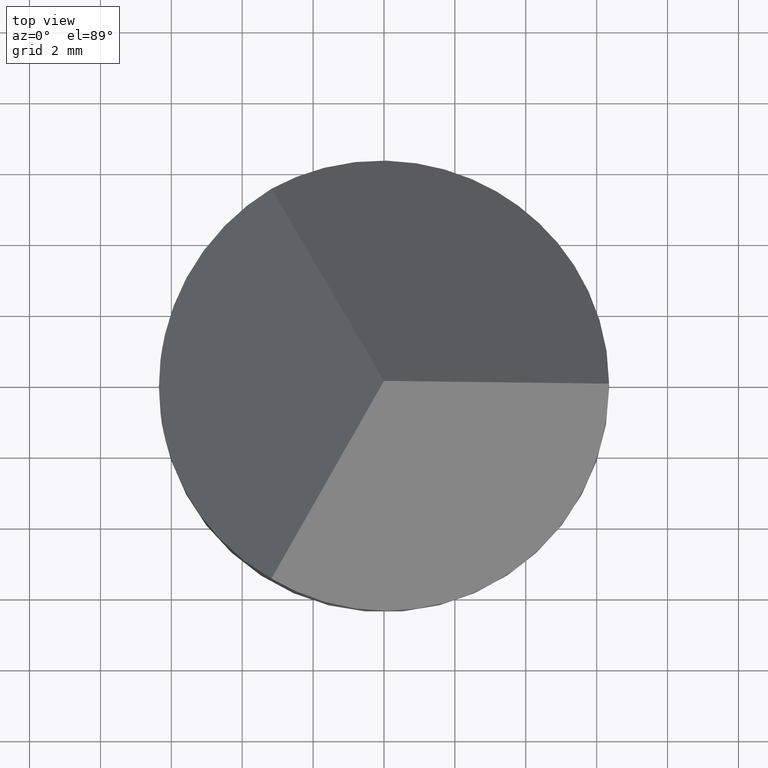
[diagram: clean part render]
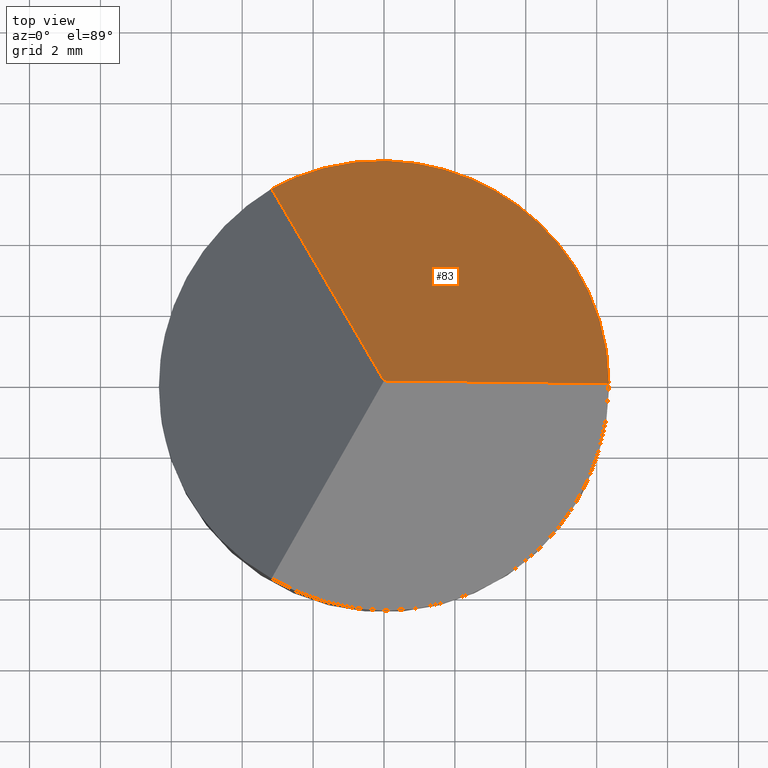
[diagram: same view with one face highlighted and labeled with its STEP entity id]
A machine part, top view. The second image highlights one B-rep face of the part: STEP entity #83.
In plain terms, the highlighted planar face has unit normal (0.4082, 0.7071, 0.5774).
Its self-contained STEP definition (entity closure, byte-faithful):
#6 = CARTESIAN_POINT ( 'NONE',  ( 7.073520084914156000, -12.25169617543019700, 20.16139043989909000 ) ) ;
#8 = ORIENTED_EDGE ( 'NONE', *, *, #205, .T. ) ;
#14 = CARTESIAN_POINT ( 'NONE',  ( 6.350000000000000500, 5.499261314031192800, -1.062988789698542600 ) ) ;
#23 = VERTEX_POINT ( 'NONE', #175 ) ;
#30 = CARTESIAN_POINT ( 'NONE',  ( 14.72243186433548900, -8.499999999999966200, 10.16000000000000000 ) ) ;
#31 = CARTESIAN_POINT ( 'NONE',  ( -8.673617379884035500E-016, -4.004885026051589500E-016, 10.16000000000000200 ) ) ;
#43 = ORIENTED_EDGE ( 'NONE', *, *, #126, .F. ) ;
#45 = VECTOR ( 'NONE', #75, 1000.000000000000200 ) ;
#51 = DIRECTION ( 'NONE',  ( 0.4082765531884057800, -0.7071557336614134900, 0.5772703218305811300 ) ) ;
#52 = VERTEX_POINT ( 'NONE', #295 ) ;
#70 =( BOUNDED_CURVE ( )  B_SPLINE_CURVE ( 3, ( #251, #14, #131, #253 ),
 .UNSPECIFIED., .F., .T. ) 
 B_SPLINE_CURVE_WITH_KNOTS ( ( 4, 4 ),
 ( 5.235987755982986200, 7.330382858376182800 ),
 .UNSPECIFIED. ) 
 CURVE ( )  GEOMETRIC_REPRESENTATION_ITEM ( )  RATIONAL_B_SPLINE_CURVE ( ( 1.000000000000000000, 0.6666666666666663000, 0.6666666666666663000, 1.000000000000000000 ) ) 
 REPRESENTATION_ITEM ( '' )  );
#74 = VECTOR ( 'NONE', #51, 1000.000000000000100 ) ;
#75 = DIRECTION ( 'NONE',  ( -0.8165531063768112200, -1.387778794088437300E-016, 0.5772703218305786900 ) ) ;
#80 = PLANE ( 'NONE',  #110 ) ;
#83 = ADVANCED_FACE ( 'NONE', ( #146 ), #80, .T. ) ;
#107 = VERTEX_POINT ( 'NONE', #31 ) ;
#110 = AXIS2_PLACEMENT_3D ( 'NONE', #30, #124, #173 ) ;
#124 = DIRECTION ( 'NONE',  ( 0.4082200218682777700, 0.7070578185427395200, 0.5774302165486711000 ) ) ;
#126 = EDGE_CURVE ( 'NONE', #52, #107, #289, .T. ) ;
#131 = CARTESIAN_POINT ( 'NONE',  ( 1.587499999999992800, 8.248891971046784700, -1.062988789698558100 ) ) ;
#146 = FACE_OUTER_BOUND ( 'NONE', #189, .T. ) ;
#158 = EDGE_CURVE ( 'NONE', #23, #107, #268, .T. ) ;
#173 = DIRECTION ( 'NONE',  ( 0.0000000000000000000, -0.6325343505460012700, 0.7745323075116675700 ) ) ;
#175 = CARTESIAN_POINT ( 'NONE',  ( -3.175000000000005200, 5.499261314031177700, 5.670804484120573400 ) ) ;
#189 = EDGE_LOOP ( 'NONE', ( #43, #8, #266 ) ) ;
#205 = EDGE_CURVE ( 'NONE', #52, #23, #70, .T. ) ;
#243 = CARTESIAN_POINT ( 'NONE',  ( 9.816313587227853100, 1.734723475976807100E-015, 3.220259694763891700 ) ) ;
#251 = CARTESIAN_POINT ( 'NONE',  ( 6.350000000000003200, 1.145603619295304100E-015, 5.670804484120599100 ) ) ;
#253 = CARTESIAN_POINT ( 'NONE',  ( -3.175000000000005200, 5.499261314031177700, 5.670804484120573400 ) ) ;
#266 = ORIENTED_EDGE ( 'NONE', *, *, #158, .T. ) ;
#268 = LINE ( 'NONE', #6, #74 ) ;
#289 = LINE ( 'NONE', #243, #45 ) ;
#295 = CARTESIAN_POINT ( 'NONE',  ( 6.350000000000003200, 1.145603619295304100E-015, 5.670804484120599100 ) ) ;